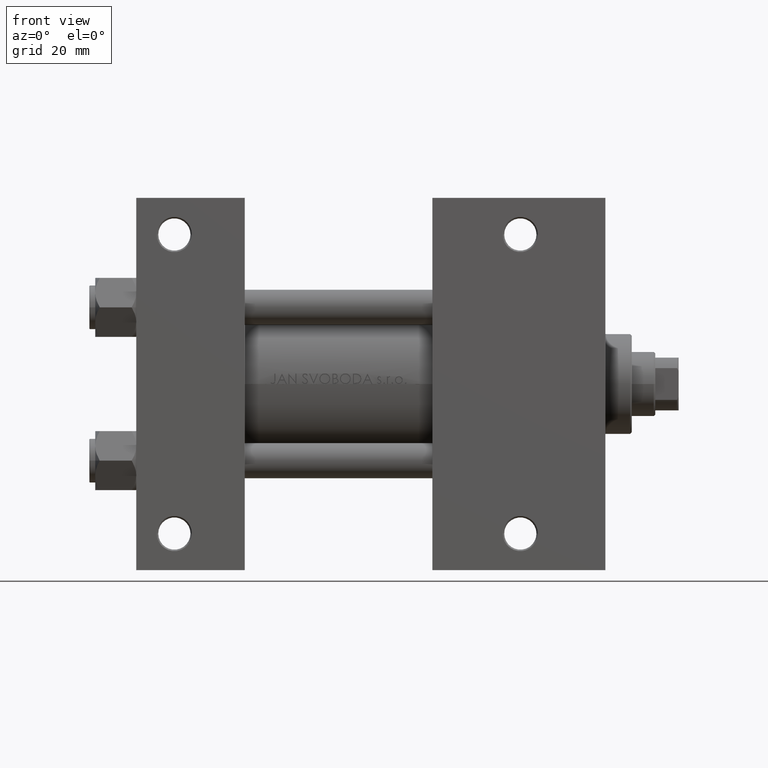
[diagram: clean part render]
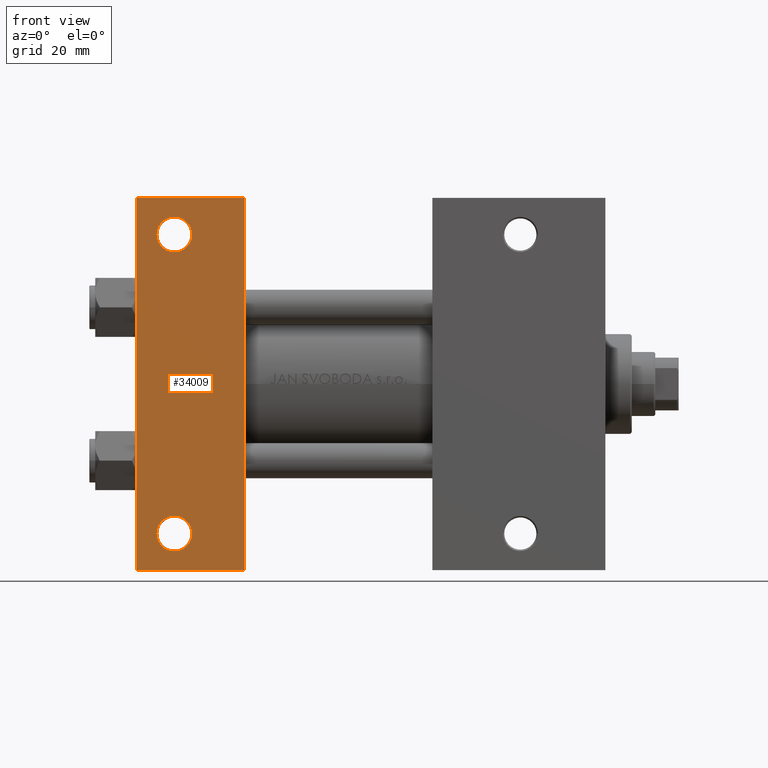
[diagram: same view with one face highlighted and labeled with its STEP entity id]
A machine part, front view. The second image highlights one B-rep face of the part: STEP entity #34009.
In plain terms, the highlighted planar face has unit normal (0, -1, -0).
Its self-contained STEP definition (entity closure, byte-faithful):
#1679 = CARTESIAN_POINT ( 'NONE',  ( 1.595073532467135441E-14, 63.50000000000000000, -37.50000000000002132 ) ) ;
#1859 = DIRECTION ( 'NONE',  ( 0.000000000000000000, -1.000000000000000000, -9.251858538542972814E-17 ) ) ;
#3815 = FACE_OUTER_BOUND ( 'NONE', #18215, .T. ) ;
#4617 = CARTESIAN_POINT ( 'NONE',  ( 1.595073532467135441E-14, 63.50000000000000000, -37.50000000000002132 ) ) ;
#4674 = ORIENTED_EDGE ( 'NONE', *, *, #17644, .F. ) ;
#4802 = PLANE ( 'NONE',  #8209 ) ;
#5357 = CARTESIAN_POINT ( 'NONE',  ( 37.00000000000000000, 37.49999999999999289, -37.50000000000000000 ) ) ;
#5365 = ORIENTED_EDGE ( 'NONE', *, *, #48958, .T. ) ;
#5551 = VERTEX_POINT ( 'NONE', #20392 ) ;
#6546 = CARTESIAN_POINT ( 'NONE',  ( 3.977209754999747208E-16, -63.50000000000000000, -37.49999999999999289 ) ) ;
#8073 = DIRECTION ( 'NONE',  ( 0.000000000000000000, -1.000000000000000000, -9.251858538542972814E-17 ) ) ;
#8209 = AXIS2_PLACEMENT_3D ( 'NONE', #26750, #45666, #11562 ) ;
#8892 = VECTOR ( 'NONE', #13628, 1000.000000000000000 ) ;
#10810 = LINE ( 'NONE', #18756, #39571 ) ;
#11562 = DIRECTION ( 'NONE',  ( 0.000000000000000000, 1.000000000000000000, 9.251858538542972814E-17 ) ) ;
#11982 = CIRCLE ( 'NONE', #27100, 5.999500000000018929 ) ;
#13503 = ORIENTED_EDGE ( 'NONE', *, *, #41728, .T. ) ;
#13628 = DIRECTION ( 'NONE',  ( 1.000000000000000000, 0.000000000000000000, 0.000000000000000000 ) ) ;
#14188 = CARTESIAN_POINT ( 'NONE',  ( 37.00000000000001421, 63.50000000000000000, -37.50000000000002132 ) ) ;
#16570 = VERTEX_POINT ( 'NONE', #37020 ) ;
#16574 = EDGE_CURVE ( 'NONE', #5551, #23814, #46695, .T. ) ;
#17349 = LINE ( 'NONE', #1679, #8892 ) ;
#17644 = EDGE_CURVE ( 'NONE', #47751, #33213, #10810, .T. ) ;
#18144 = ORIENTED_EDGE ( 'NONE', *, *, #35939, .T. ) ;
#18215 = EDGE_LOOP ( 'NONE', ( #4674, #26260, #13503, #18144 ) ) ;
#18756 = CARTESIAN_POINT ( 'NONE',  ( 0.000000000000000000, 37.49999999999999289, -37.50000000000000000 ) ) ;
#18790 = CARTESIAN_POINT ( 'NONE',  ( 18.99950000000001538, -51.00000000000001421, -37.50000000000000711 ) ) ;
#19565 = DIRECTION ( 'NONE',  ( 0.000000000000000000, 1.000000000000000000, 0.000000000000000000 ) ) ;
#20316 = DIRECTION ( 'NONE',  ( -0.000000000000000000, -9.251858538542972814E-17, 1.000000000000000000 ) ) ;
#20392 = CARTESIAN_POINT ( 'NONE',  ( 7.000500000000034362, 50.99999999999999289, -37.50000000000000000 ) ) ;
#20812 = CARTESIAN_POINT ( 'NONE',  ( 12.99999999999999822, 50.99999999999999289, -37.50000000000000000 ) ) ;
#21152 = ORIENTED_EDGE ( 'NONE', *, *, #16574, .T. ) ;
#23038 = VECTOR ( 'NONE', #1859, 1000.000000000000000 ) ;
#23814 = VERTEX_POINT ( 'NONE', #49291 ) ;
#23918 = CIRCLE ( 'NONE', #38203, 5.999500000000018929 ) ;
#23998 = FACE_BOUND ( 'NONE', #38347, .T. ) ;
#24188 = VERTEX_POINT ( 'NONE', #18790 ) ;
#24395 = EDGE_CURVE ( 'NONE', #24188, #39193, #11982, .T. ) ;
#24763 = VERTEX_POINT ( 'NONE', #14188 ) ;
#25223 = LINE ( 'NONE', #6546, #36875 ) ;
#25469 = DIRECTION ( 'NONE',  ( -1.000000000000000000, -0.000000000000000000, -0.000000000000000000 ) ) ;
#26249 = CARTESIAN_POINT ( 'NONE',  ( 7.000499999999979295, -51.00000000000001421, -37.50000000000000711 ) ) ;
#26260 = ORIENTED_EDGE ( 'NONE', *, *, #31048, .T. ) ;
#26750 = CARTESIAN_POINT ( 'NONE',  ( 37.00000000000000000, 37.49999999999999289, -37.50000000000000000 ) ) ;
#27068 = CARTESIAN_POINT ( 'NONE',  ( 12.99999999999999822, 50.99999999999999289, -37.50000000000000000 ) ) ;
#27100 = AXIS2_PLACEMENT_3D ( 'NONE', #33180, #40658, #37426 ) ;
#27163 = CIRCLE ( 'NONE', #27949, 5.999499999999962974 ) ;
#27797 = DIRECTION ( 'NONE',  ( -0.000000000000000000, -9.251858538542972814E-17, 1.000000000000000000 ) ) ;
#27949 = AXIS2_PLACEMENT_3D ( 'NONE', #20812, #20316, #36477 ) ;
#28373 = DIRECTION ( 'NONE',  ( -0.000000000000000000, -9.251858538542972814E-17, 1.000000000000000000 ) ) ;
#30782 = AXIS2_PLACEMENT_3D ( 'NONE', #27068, #27797, #19565 ) ;
#31048 = EDGE_CURVE ( 'NONE', #47751, #24763, #17349, .T. ) ;
#33180 = CARTESIAN_POINT ( 'NONE',  ( 12.99999999999999822, -51.00000000000001421, -37.50000000000000711 ) ) ;
#33213 = VERTEX_POINT ( 'NONE', #35426 ) ;
#34009 = ADVANCED_FACE ( 'NONE', ( #38912, #23998, #3815 ), #4802, .T. ) ;
#35426 = CARTESIAN_POINT ( 'NONE',  ( 3.977209754999747208E-16, -63.50000000000000000, -37.49999999999999289 ) ) ;
#35939 = EDGE_CURVE ( 'NONE', #16570, #33213, #25223, .T. ) ;
#36477 = DIRECTION ( 'NONE',  ( 0.000000000000000000, 1.000000000000000000, 0.000000000000000000 ) ) ;
#36875 = VECTOR ( 'NONE', #25469, 1000.000000000000000 ) ;
#37020 = CARTESIAN_POINT ( 'NONE',  ( 37.00000000000000000, -63.50000000000000000, -37.49999999999999289 ) ) ;
#37426 = DIRECTION ( 'NONE',  ( 0.000000000000000000, 1.000000000000000000, 0.000000000000000000 ) ) ;
#38203 = AXIS2_PLACEMENT_3D ( 'NONE', #47278, #28373, #43531 ) ;
#38347 = EDGE_LOOP ( 'NONE', ( #48761, #38800 ) ) ;
#38800 = ORIENTED_EDGE ( 'NONE', *, *, #24395, .T. ) ;
#38912 = FACE_BOUND ( 'NONE', #43356, .T. ) ;
#39193 = VERTEX_POINT ( 'NONE', #26249 ) ;
#39232 = LINE ( 'NONE', #5357, #23038 ) ;
#39571 = VECTOR ( 'NONE', #8073, 1000.000000000000000 ) ;
#40658 = DIRECTION ( 'NONE',  ( -0.000000000000000000, -9.251858538542972814E-17, 1.000000000000000000 ) ) ;
#41728 = EDGE_CURVE ( 'NONE', #24763, #16570, #39232, .T. ) ;
#43356 = EDGE_LOOP ( 'NONE', ( #21152, #5365 ) ) ;
#43400 = EDGE_CURVE ( 'NONE', #39193, #24188, #23918, .T. ) ;
#43531 = DIRECTION ( 'NONE',  ( 0.000000000000000000, 1.000000000000000000, 0.000000000000000000 ) ) ;
#45666 = DIRECTION ( 'NONE',  ( 0.000000000000000000, 9.251858538542972814E-17, -1.000000000000000000 ) ) ;
#46695 = CIRCLE ( 'NONE', #30782, 5.999499999999962974 ) ;
#47278 = CARTESIAN_POINT ( 'NONE',  ( 12.99999999999999822, -51.00000000000001421, -37.50000000000000711 ) ) ;
#47751 = VERTEX_POINT ( 'NONE', #4617 ) ;
#48761 = ORIENTED_EDGE ( 'NONE', *, *, #43400, .T. ) ;
#48958 = EDGE_CURVE ( 'NONE', #23814, #5551, #27163, .T. ) ;
#49291 = CARTESIAN_POINT ( 'NONE',  ( 18.99949999999996209, 50.99999999999999289, -37.50000000000000000 ) ) ;